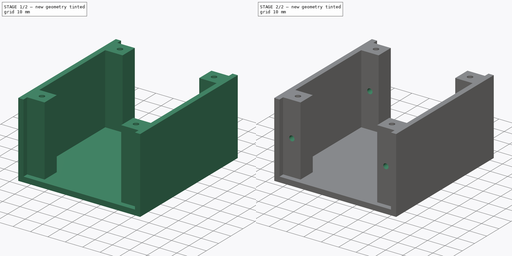
[diagram: build sequence overview — one tinted view per stage of 2, left to right]
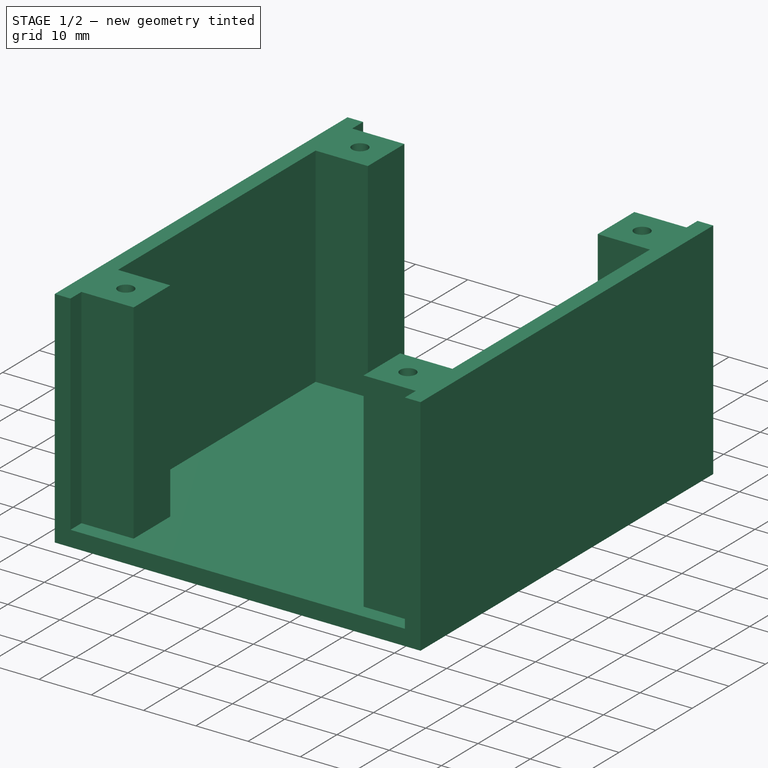
[diagram: stage 1 of 2 — iso view after this stage's code; geometry added in this stage tinted green]
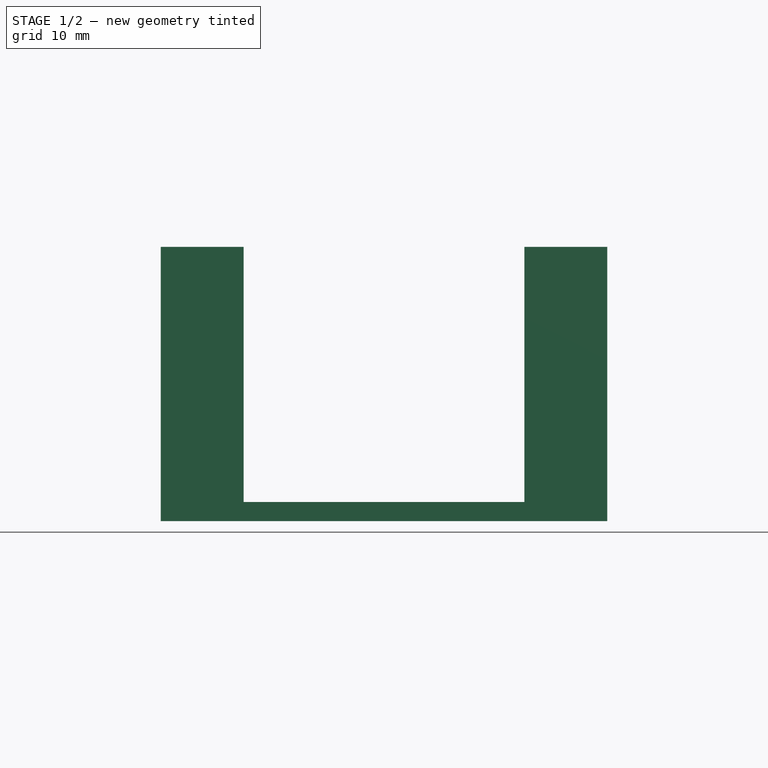
[diagram: stage 1 of 2 — front view after this stage's code; geometry added in this stage tinted green]
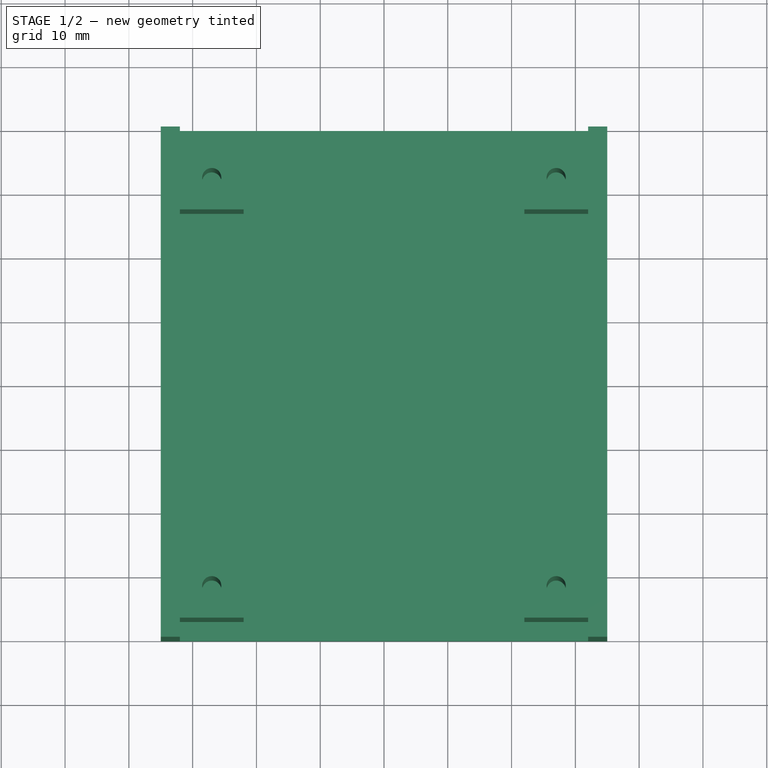
[diagram: stage 1 of 2 — top view after this stage's code; geometry added in this stage tinted green]
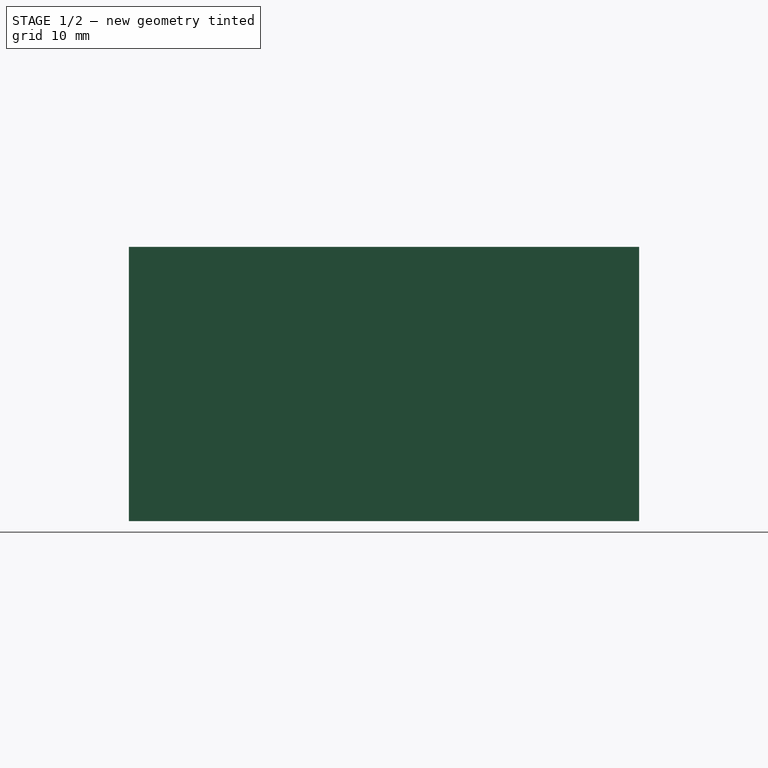
[diagram: stage 1 of 2 — right view after this stage's code; geometry added in this stage tinted green]
FCSTD DOCUMENT  (FreeCAD 0.17R13522 (Git))
Label: Caixa
License: All rights reserved
LicenseURL: http://en.wikipedia.org/wiki/All_rights_reserved
objects: Sketcher::SketchObject×3, PartDesign::Pad×2, PartDesign::Pocket×1, PartDesign::Body×1
note: 10 computed .brp shape members not serialized (recipe doc carries the construction recipe); baked Part::Feature solids carry a one-line shape summary decoded from their .brp

FEATURE [Sketcher::SketchObject] Sketch
  MapMode = 5
  Support = -> [XY_Plane]
  sketch-geometry (4):
    g0: LineSegment StartX=-35 StartY=80 StartZ=0 EndX=35 EndY=80 EndZ=0
    g1: LineSegment StartX=35 StartY=80 StartZ=0 EndX=35 EndY=0 EndZ=0
    g2: LineSegment StartX=35 StartY=0 StartZ=0 EndX=-35 EndY=0 EndZ=0
    g3: LineSegment StartX=-35 StartY=0 StartZ=0 EndX=-35 EndY=80 EndZ=0
  constraints (11):
    c: Coincident(g0,g1)
    c: Coincident(g1,g2)
    c: Coincident(g2,g3)
    c: Coincident(g3,g0)
    c: Horizontal(g0)
    c: Horizontal(g2)
    c: Vertical(g1)
    c: Vertical(g3)
    c: DistanceY(g3,g3) = 80
    c: DistanceX(g0,g0) = 70
    c: Symmetric(g2,g1,g-1)
FEATURE [PartDesign::Pad] Pad
  Length = 3
  Length2 = 100
  Profile = -> Sketch
  Type = 0
FEATURE [Sketcher::SketchObject] Sketch001
  ExternalGeometry = -> [Pad]
  MapMode = 5
  Placement = pos=(0,0,3) rot=(0,0,1;0rad)
  Support = -> [Pad]
  sketch-geometry (32):
    g0: LineSegment StartX=-35 StartY=0 StartZ=0 EndX=-35 EndY=80 EndZ=0
    g1: LineSegment StartX=-35 StartY=80 StartZ=0 EndX=-32 EndY=80 EndZ=0
    g2: LineSegment StartX=-32 StartY=80 StartZ=0 EndX=-32 EndY=77 EndZ=0
    g3: LineSegment StartX=-32 StartY=77 StartZ=0 EndX=-22 EndY=77 EndZ=0
    g4: LineSegment StartX=-22 StartY=77 StartZ=0 EndX=-22 EndY=67 EndZ=0
    g5: LineSegment StartX=-22 StartY=67 StartZ=0 EndX=-32 EndY=67 EndZ=0
    g6: LineSegment StartX=-32 StartY=67 StartZ=0 EndX=-32 EndY=13 EndZ=0
    g7: LineSegment StartX=-32 StartY=13 StartZ=0 EndX=-22 EndY=13 EndZ=0
    g8: LineSegment StartX=-22 StartY=13 StartZ=0 EndX=-22 EndY=3 EndZ=0
    g9: LineSegment StartX=-22 StartY=3 StartZ=0 EndX=-32 EndY=3 EndZ=0
    g10: LineSegment StartX=-32 StartY=3 StartZ=0 EndX=-32 EndY=0 EndZ=0
    g11: LineSegment StartX=-32 StartY=0 StartZ=0 EndX=-35 EndY=0 EndZ=0
    g12: LineSegment StartX=35 StartY=80 StartZ=0 EndX=35 EndY=0 EndZ=0
    g13: LineSegment StartX=35 StartY=0 StartZ=0 EndX=32 EndY=0 EndZ=0
    g14: LineSegment StartX=32 StartY=0 StartZ=0 EndX=32 EndY=3 EndZ=0
    g15: LineSegment StartX=32 StartY=3 StartZ=0 EndX=22 EndY=3 EndZ=0
    g16: LineSegment StartX=22 StartY=3 StartZ=0 EndX=22 EndY=13 EndZ=0
    g17: LineSegment StartX=22 StartY=13 StartZ=0 EndX=32 EndY=13 EndZ=0
    g18: LineSegment StartX=32 StartY=13 StartZ=0 EndX=32 EndY=67 EndZ=0
    g19: LineSegment StartX=32 StartY=67 StartZ=0 EndX=22 EndY=67 EndZ=0
    g20: LineSegment StartX=22 StartY=67 StartZ=0 EndX=22 EndY=77 EndZ=0
    g21: LineSegment StartX=22 StartY=77 StartZ=0 EndX=32 EndY=77 EndZ=0
    g22: LineSegment StartX=32 StartY=77 StartZ=0 EndX=32 EndY=80 EndZ=0
    g23: LineSegment StartX=32 StartY=80 StartZ=0 EndX=35 EndY=80 EndZ=0
    g24: LineSegment [constr] StartX=-27 StartY=72 StartZ=0 EndX=27 EndY=72 EndZ=0
    g25: LineSegment [constr] StartX=27 StartY=72 StartZ=0 EndX=27 EndY=8 EndZ=0
    g26: LineSegment [constr] StartX=27 StartY=8 StartZ=0 EndX=-27 EndY=8 EndZ=0
    g27: LineSegment [constr] StartX=-27 StartY=8 StartZ=0 EndX=-27 EndY=72 EndZ=0
    g28: Circle CenterX=27 CenterY=8 CenterZ=0 NormalX=0 NormalY=0 NormalZ=1 AngleXU=0 Radius=1.5
    g29: Circle CenterX=-27 CenterY=8 CenterZ=0 NormalX=0 NormalY=0 NormalZ=1 AngleXU=0 Radius=1.5
    g30: Circle CenterX=27 CenterY=72 CenterZ=0 NormalX=0 NormalY=0 NormalZ=1 AngleXU=0 Radius=1.5
    g31: Circle CenterX=-27 CenterY=72 CenterZ=0 NormalX=0 NormalY=0 NormalZ=1 AngleXU=0 Radius=1.5
  constraints (92):
    c: Coincident(g0,g1)
    c: Coincident(g1,g2)
    c: Coincident(g2,g3)
    c: Coincident(g3,g4)
    c: Coincident(g4,g5)
    c: Coincident(g5,g6)
    c: Coincident(g6,g7)
    c: Coincident(g7,g8)
    c: Coincident(g8,g9)
    c: Coincident(g9,g10)
    c: Coincident(g10,g11)
    c: Coincident(g0,g11)
    c: Vertical(g0)
    c: Vertical(g2)
    c: Vertical(g4)
    c: Vertical(g6)
    c: Vertical(g8)
    c: Vertical(g10)
    c: Horizontal(g1)
    c: Horizontal(g3)
    c: Horizontal(g5)
    c: Horizontal(g7)
    c: Horizontal(g9)
    c: Horizontal(g11)
    c: Equal(g3,g4)
    c: Equal(g4,g5)
    c: Equal(g5,g7)
    c: Equal(g7,g8)
    c: Equal(g8,g9)
    c: DistanceX(g3,g3) = 10
    c: Equal(g2,g10)
    c: Equal(g1,g11)
    c: DistanceX(g11,g11) = 3
    c: DistanceY(g10,g10) = 3
    c: Coincident(g0,g-4)
    c: Coincident(g0,g-3)
    c: Coincident(g12,g13)
    c: Coincident(g13,g14)
    c: Coincident(g14,g15)
    c: Coincident(g15,g16)
    c: Coincident(g16,g17)
    c: Coincident(g17,g18)
    c: Coincident(g18,g19)
    c: Coincident(g19,g20)
    c: Coincident(g20,g21)
    c: Coincident(g21,g22)
    c: Coincident(g22,g23)
    c: Coincident(g12,g23)
    c: Vertical(g12)
    c: Vertical(g14)
    c: Vertical(g16)
    c: Vertical(g18)
    c: Vertical(g20)
    c: Vertical(g22)
    c: Horizontal(g13)
    c: Horizontal(g15)
    c: Horizontal(g17)
    c: Horizontal(g19)
    c: Horizontal(g21)
    c: Horizontal(g23)
    c: Equal(g15,g16)
    c: Equal(g16,g17)
    c: Equal(g17,g19)
    c: Equal(g19,g20)
    c: Equal(g20,g21)
    c: Equal(g14,g22)
    c: Equal(g13,g23)
    c: DistanceY(g22,g22) = 3
    c: DistanceX(g23,g23) = 3
    c: DistanceX(g21,g21) = 10
    c: Coincident(g12,g-4)
    c: Coincident(g12,g-3)
    c: Coincident(g24,g25)
    c: Coincident(g25,g26)
    c: Coincident(g26,g27)
    c: Coincident(g27,g24)
    c: Horizontal(g24)
    c: Horizontal(g26)
    c: Vertical(g25)
    c: Vertical(g27)
    c: DistanceY(g12,g25) = 8
    c: DistanceX(g25,g12) = 8
    c: DistanceX(g0,g24) = 8
    c: DistanceY(g24,g0) = 8
    c: Radius(g28) = 1.5
    c: Equal(g28,g29)
    c: Equal(g28,g30)
    c: Equal(g28,g31)
    c: Coincident(g24,g31)
    c: Coincident(g24,g30)
    c: Coincident(g29,g26)
    c: Coincident(g28,g25)
FEATURE [PartDesign::Pad] Pad001
  BaseFeature = -> Pad
  Length = 40
  Length2 = 100
  Profile = -> Sketch001
  Type = 0
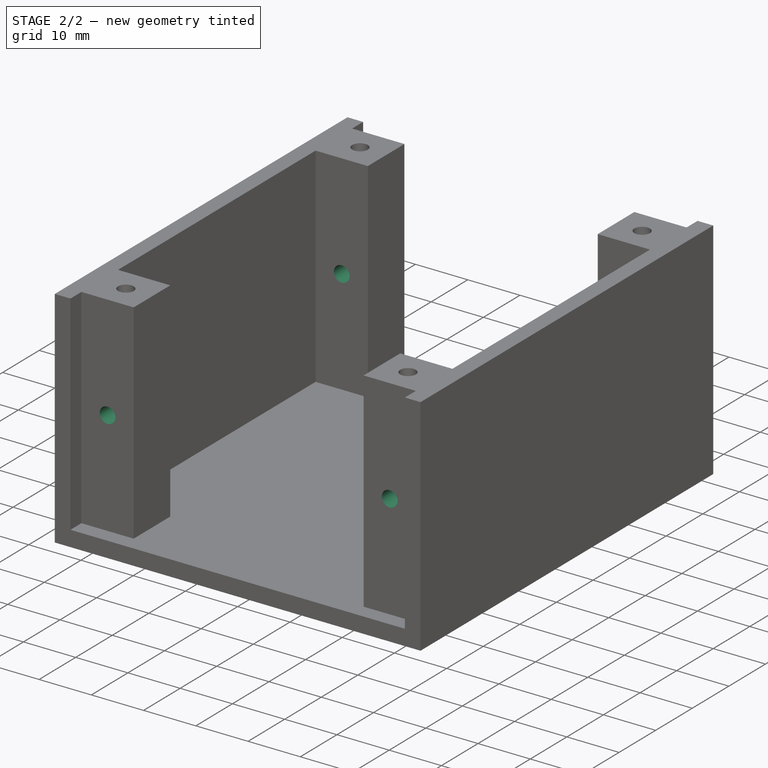
[diagram: stage 2 of 2 — iso view after this stage's code; geometry added in this stage tinted green]
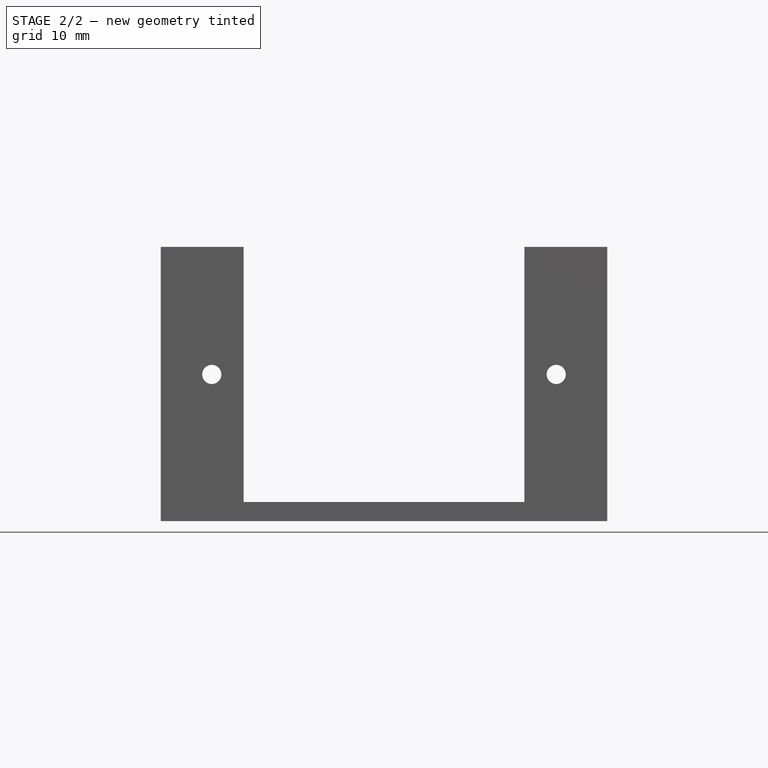
[diagram: stage 2 of 2 — front view after this stage's code; geometry added in this stage tinted green]
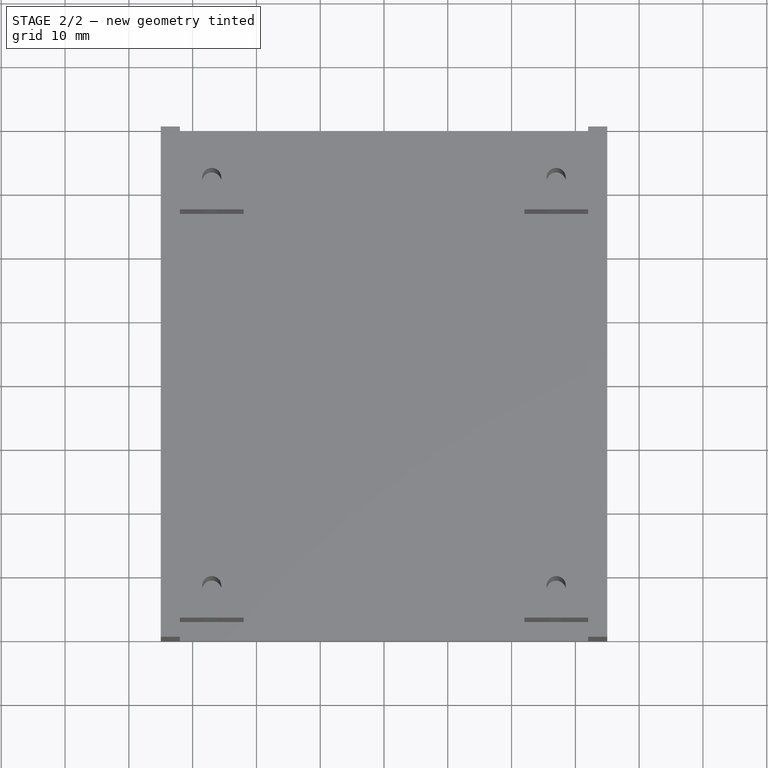
[diagram: stage 2 of 2 — top view after this stage's code; geometry added in this stage tinted green]
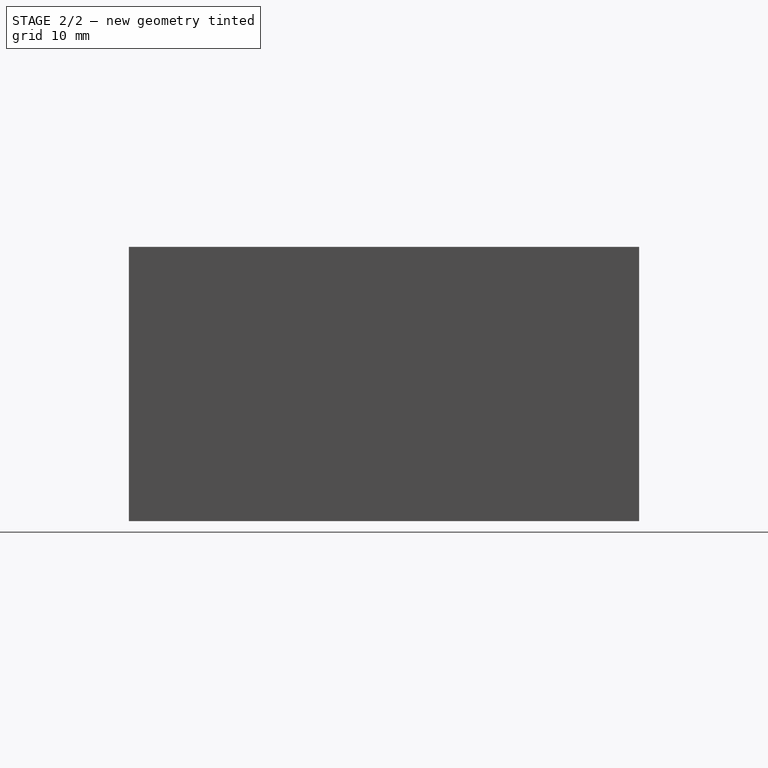
[diagram: stage 2 of 2 — right view after this stage's code; geometry added in this stage tinted green]
FEATURE [Sketcher::SketchObject] Sketch002
  ExternalGeometry = -> [Pad001]
  MapMode = 5
  Placement = pos=(0,3,0) rot=(1,0,0;1.5708rad)
  Support = -> [Pad001]
  sketch-geometry (2):
    g0: Circle CenterX=27 CenterY=23 CenterZ=0 NormalX=0 NormalY=0 NormalZ=1 AngleXU=0 Radius=1.5
    g1: Circle CenterX=-27 CenterY=23 CenterZ=0 NormalX=0 NormalY=0 NormalZ=1 AngleXU=0 Radius=1.5
  constraints (7):
    c: Radius(g0) = 1.5
    c: Equal(g0,g1)
    c: DistanceY(g1,g-3) = 20
    c: DistanceX(g1,g-3) = 5
    c: DistanceY(g0,g-4) = 20
    c: DistanceX(g-4,g0) = 5
    c: DistanceX(g1,g0) = 54
FEATURE [PartDesign::Pocket] Pocket
  BaseFeature = -> Pad001
  Length = 5
  Length2 = 100
  Profile = -> Sketch002
  Type = 1
FEATURE [PartDesign::Body] Body
  Group = -> [Sketch,Pad,Sketch001,Pad001,Sketch002,Pocket]
  Origin = -> Origin
  Tip = -> Pocket
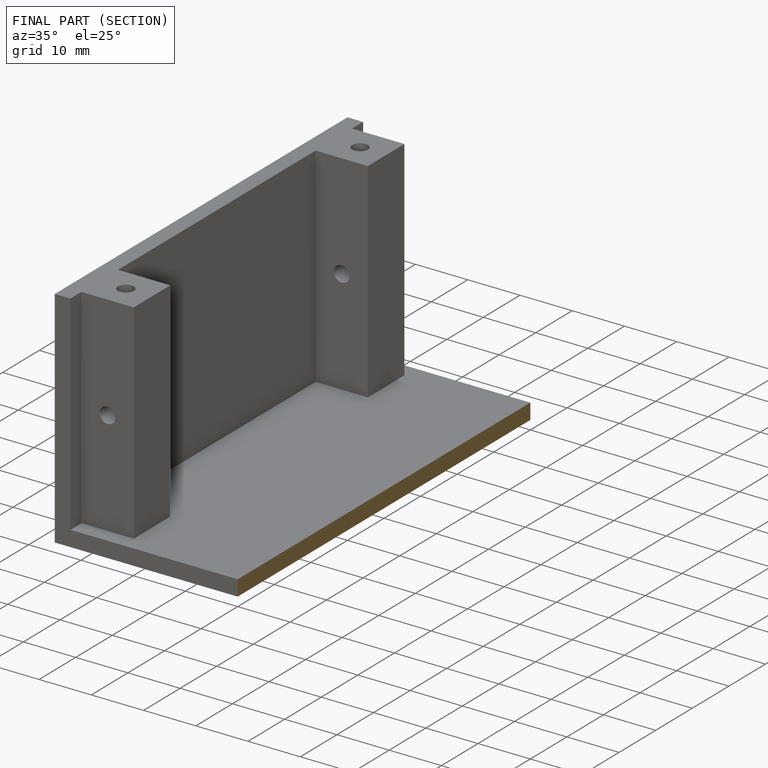
[diagram: finished part — half-section view (interior)]
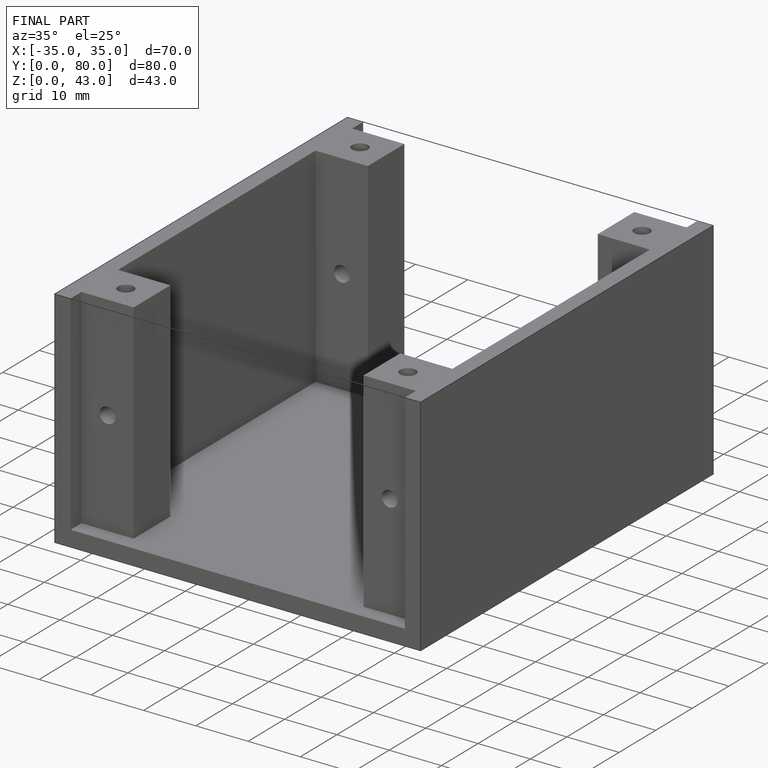
[diagram: finished part — iso view with bounding-box wireframe]
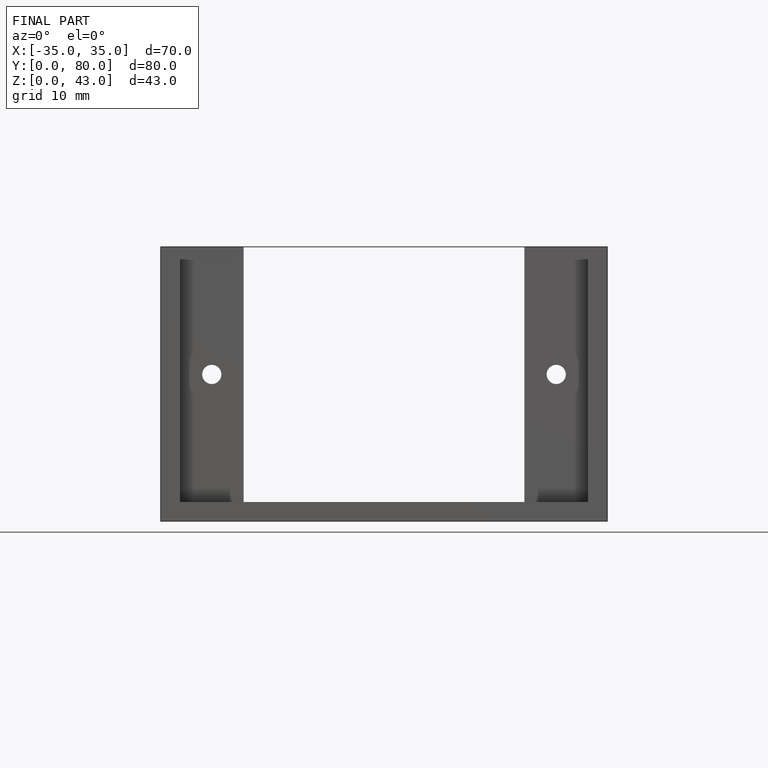
[diagram: finished part — front view with bounding-box wireframe]
